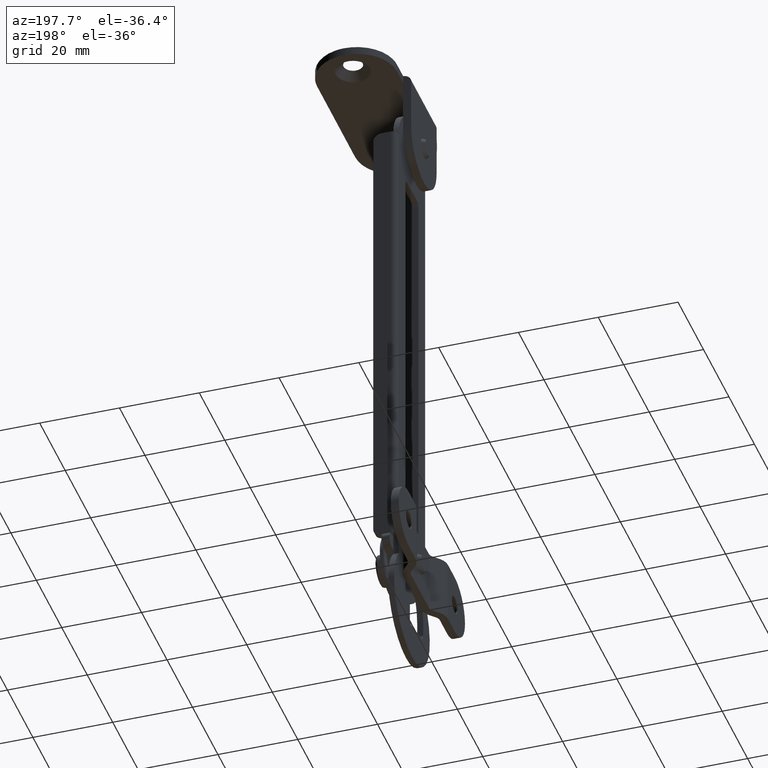
[diagram: clean part render]
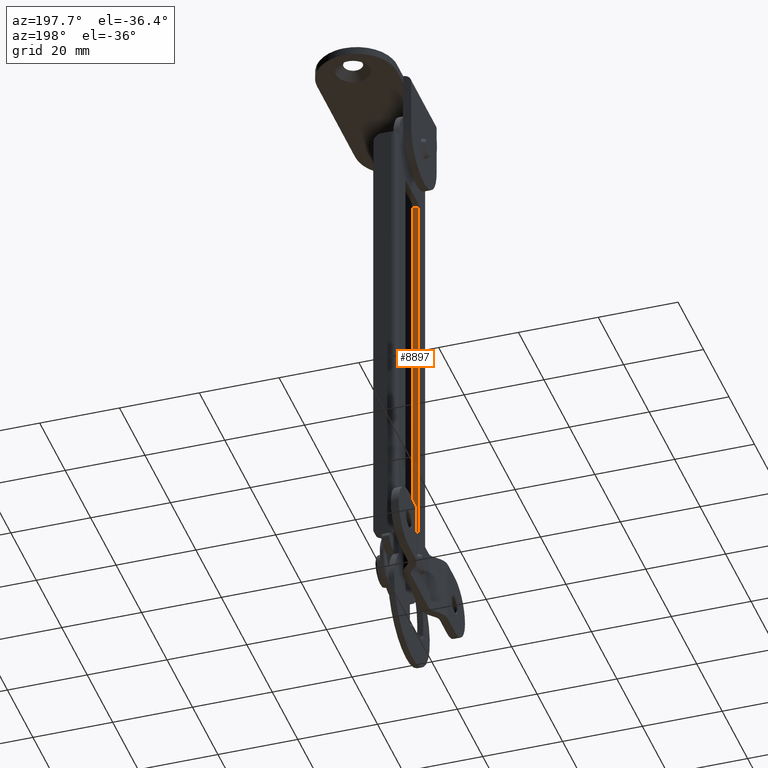
[diagram: same view with one face highlighted and labeled with its STEP entity id]
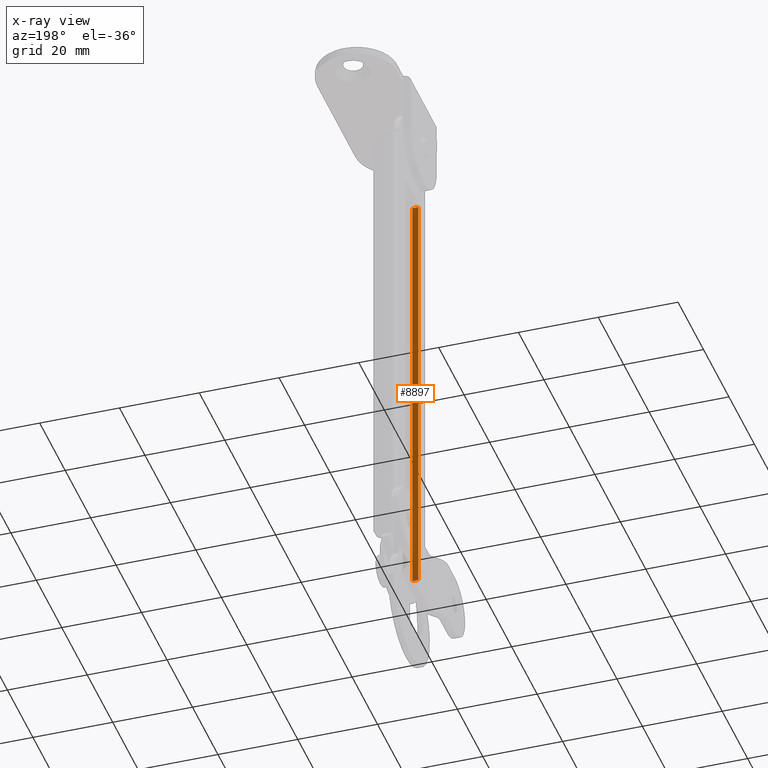
[diagram: x-ray of the same camera — body ghosted, the highlighted face saturated]
A machine part, auxiliary view. The second image highlights one B-rep face of the part: STEP entity #8897.
The next image is the same camera in x-ray: the body ghosted, the highlighted face saturated — about 11% of this face is hidden behind the body in this view.
In plain terms, the highlighted face is a freeform B-spline surface patch.
Its self-contained STEP definition (entity closure, byte-faithful):
#8324=CARTESIAN_POINT('',(5.0,-5.100005999999830,-13.000000488692200));
#8325=VERTEX_POINT('',#8324);
#8336=CARTESIAN_POINT('',(5.0,-5.100006000000160,-123.648218885323600));
#8337=VERTEX_POINT('',#8336);
#8338=CARTESIAN_POINT('',(5.0,-5.100005999999830,-13.000000488692200));
#8339=CARTESIAN_POINT('',(5.0,-5.100006000000160,-123.648218885323600));
#8340=QUASI_UNIFORM_CURVE('',1,(#8338,#8339),.UNSPECIFIED.,.F.,.U.);
#8341=EDGE_CURVE('',#8325,#8337,#8340,.T.);
#8856=CARTESIAN_POINT('',(6.500000000000000,-5.100005999999830,-13.000000488692200));
#8857=VERTEX_POINT('',#8856);
#8868=CARTESIAN_POINT('',(6.500000000000000,-5.100005999999830,-13.000000488692200));
#8869=CARTESIAN_POINT('',(5.0,-5.100005999999830,-13.000000488692200));
#8870=QUASI_UNIFORM_CURVE('',1,(#8868,#8869),.UNSPECIFIED.,.F.,.U.);
#8871=EDGE_CURVE('',#8857,#8325,#8870,.T.);
#8876=CARTESIAN_POINT('',(4.925075002907290,-5.100006000000180,-129.175097179777590));
#8877=CARTESIAN_POINT('',(4.925075002907290,-5.100006000000180,-7.473119226421686));
#8878=CARTESIAN_POINT('',(6.574925037325844,-5.100006000000180,-129.175097179777590));
#8879=CARTESIAN_POINT('',(6.574925037325844,-5.100006000000180,-7.473119226421687));
#8880=B_SPLINE_SURFACE_WITH_KNOTS('',1,1,((#8876,#8878),(#8877,#8879)),.UNSPECIFIED.,.F.,.F.,.U.,(2,2),(2,2),(0.0,121.701977953355890),(0.041708334948495,0.958291687403247),.UNSPECIFIED.);
#8881=ORIENTED_EDGE('',*,*,#8341,.F.);
#8882=ORIENTED_EDGE('',*,*,#8871,.F.);
#8883=CARTESIAN_POINT('',(6.500000000000000,-5.100006000000160,-123.648218885323600));
#8884=VERTEX_POINT('',#8883);
#8885=CARTESIAN_POINT('',(6.500000000000000,-5.100005999999830,-13.000000488692200));
#8886=CARTESIAN_POINT('',(6.500000000000000,-5.100006000000160,-123.648218885323600));
#8887=QUASI_UNIFORM_CURVE('',1,(#8885,#8886),.UNSPECIFIED.,.F.,.U.);
#8888=EDGE_CURVE('',#8857,#8884,#8887,.T.);
#8889=ORIENTED_EDGE('',*,*,#8888,.T.);
#8890=CARTESIAN_POINT('',(6.500000000000000,-5.100006000000160,-123.648218885323600));
#8891=CARTESIAN_POINT('',(5.0,-5.100006000000160,-123.648218885323600));
#8892=QUASI_UNIFORM_CURVE('',1,(#8890,#8891),.UNSPECIFIED.,.F.,.U.);
#8893=EDGE_CURVE('',#8884,#8337,#8892,.T.);
#8894=ORIENTED_EDGE('',*,*,#8893,.T.);
#8895=EDGE_LOOP('',(#8881,#8882,#8889,#8894));
#8896=FACE_OUTER_BOUND('',#8895,.T.);
#8897=ADVANCED_FACE('',(#8896),#8880,.T.);